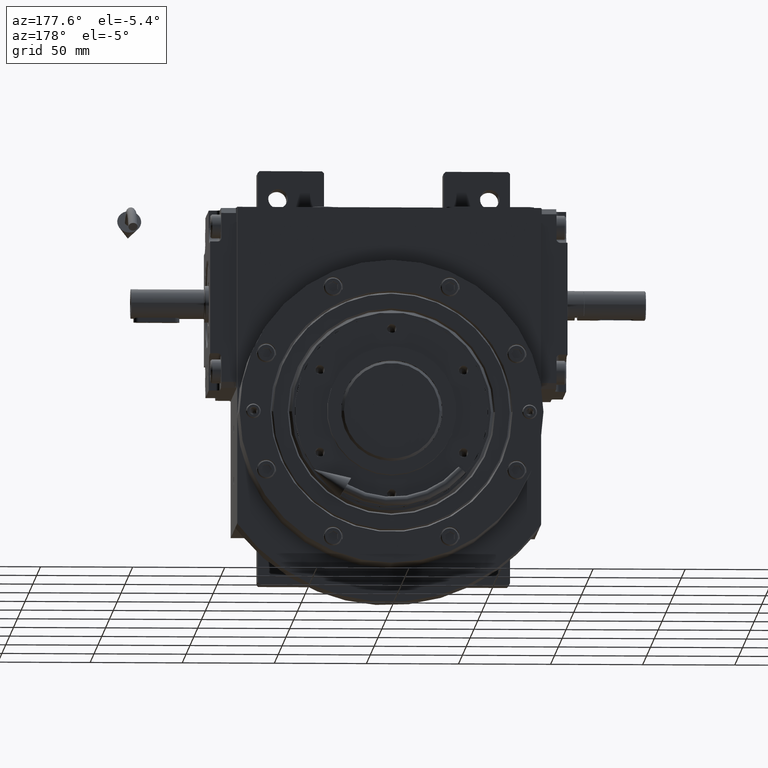
[diagram: clean part render]
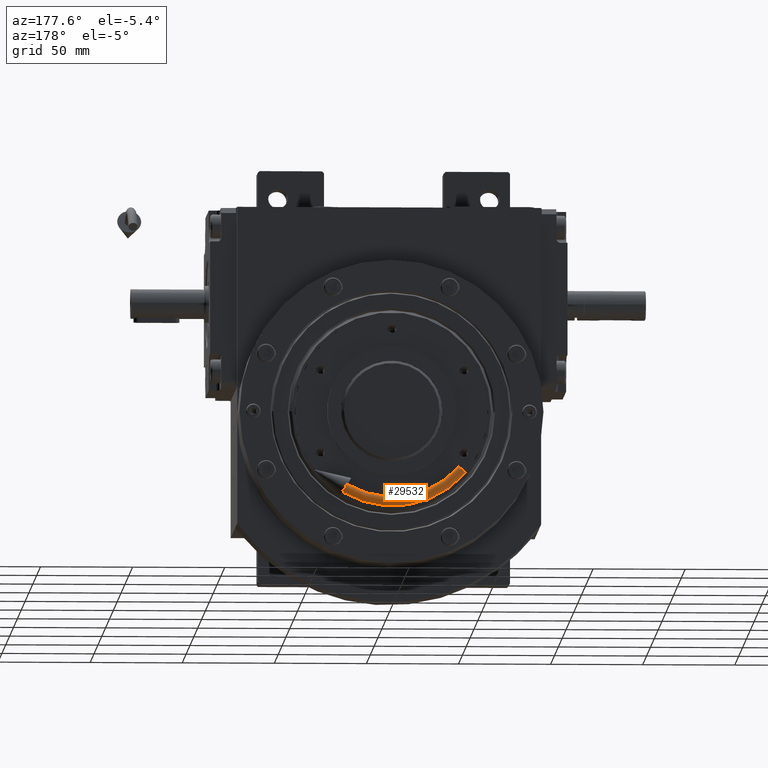
[diagram: same view with one face highlighted and labeled with its STEP entity id]
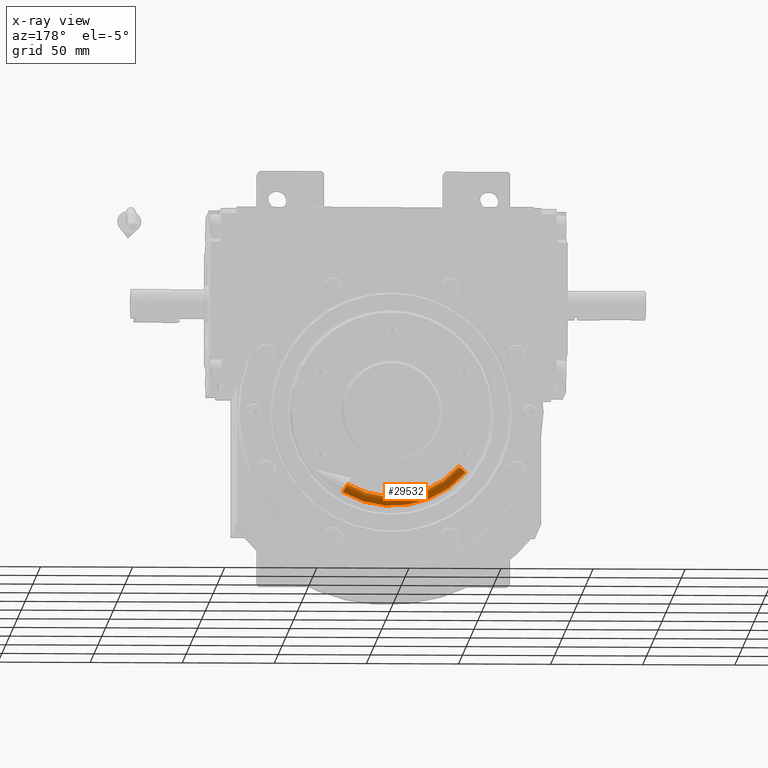
[diagram: x-ray of the same camera — body ghosted, the highlighted face saturated]
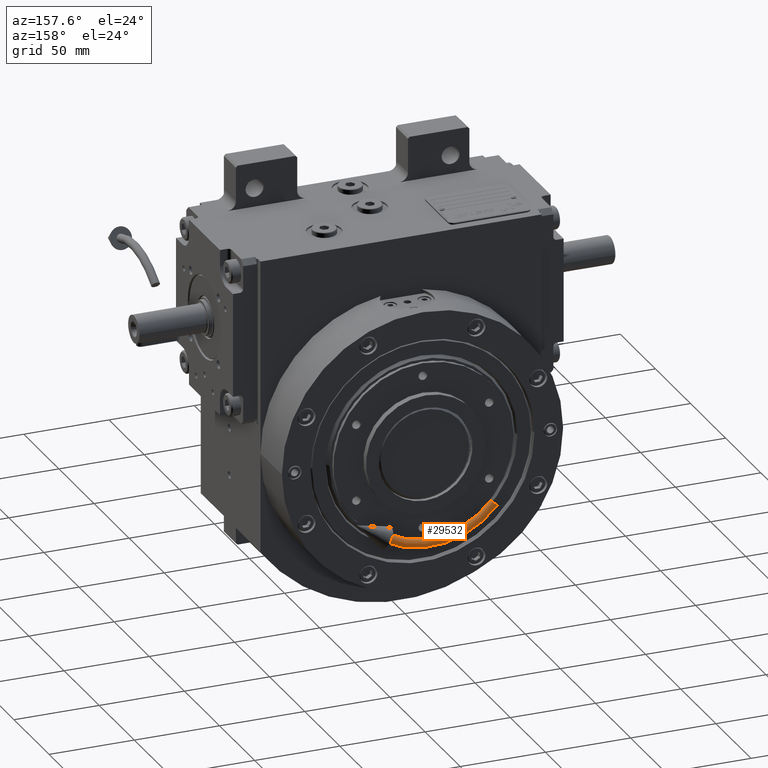
[diagram: same view with one face highlighted and labeled with its STEP entity id]
A machine part, auxiliary view. The second image highlights one B-rep face of the part: STEP entity #29532.
The next image is the same camera in x-ray: the body ghosted, the highlighted face saturated — about 0% of this face is hidden behind the body in this view.
A second angle (auxiliary view) of the same face is appended — the face is thin or edge-on in the first view.
In plain terms, the highlighted toroidal blend (fillet) surface has major radius 50 mm and minor (blend) radius 2.5 mm.
Its self-contained STEP definition (entity closure, byte-faithful):
#379 = CIRCLE ( 'NONE', #15894, 47.50000000001686828 ) ;
#936 = DIRECTION ( 'NONE',  ( -2.041375527991182042E-16, -1.000000000000000000, 1.232595164407830946E-32 ) ) ;
#4685 = CARTESIAN_POINT ( 'NONE',  ( -52.49999999998293276, -3.160566285864233684E-15, -1.373900992973723831E-14 ) ) ;
#5008 = DIRECTION ( 'NONE',  ( 1.000000000000000000, -2.041375527991182042E-16, 0.000000000000000000 ) ) ;
#5737 = VERTEX_POINT ( 'NONE', #30788 ) ;
#5757 = CARTESIAN_POINT ( 'NONE',  ( 0.000000000000000000, -1.387778780781445676E-14, 0.000000000000000000 ) ) ;
#6055 = FACE_OUTER_BOUND ( 'NONE', #31607, .T. ) ;
#7735 = TOROIDAL_SURFACE ( 'NONE', #51103, 50.00000000000000000, 2.499999999983133048 ) ;
#8466 = ORIENTED_EDGE ( 'NONE', *, *, #50323, .T. ) ;
#11010 = DIRECTION ( 'NONE',  ( 0.9848077530122086864, -2.010362446775138044E-16, 0.1736481776669274446 ) ) ;
#14217 = CIRCLE ( 'NONE', #46229, 52.49999999998313882 ) ;
#15056 = CIRCLE ( 'NONE', #59603, 2.499999999983113064 ) ;
#15894 = AXIS2_PLACEMENT_3D ( 'NONE', #29911, #53520, #5008 ) ;
#23122 = EDGE_CURVE ( 'NONE', #30179, #5737, #48256, .T. ) ;
#25791 = DIRECTION ( 'NONE',  ( -2.041375527991182042E-16, -1.000000000000000000, 1.232595164407830946E-32 ) ) ;
#26596 = CARTESIAN_POINT ( 'NONE',  ( -47.50000000001650591, 0.000000000000000000, -1.401656568589166416E-14 ) ) ;
#29532 = ADVANCED_FACE ( 'NONE', ( #6055 ), #7735, .T. ) ;
#29901 = EDGE_CURVE ( 'NONE', #30179, #48709, #379, .T. ) ;
#29911 = CARTESIAN_POINT ( 'NONE',  ( 6.249910015488181172E-32, -1.357162610802968412E-14, -3.773734306815928641E-48 ) ) ;
#30179 = VERTEX_POINT ( 'NONE', #58931 ) ;
#30788 = CARTESIAN_POINT ( 'NONE',  ( -9.116529327510729530, -1.201676182087502474E-14, 51.70240703312413189 ) ) ;
#31607 = EDGE_LOOP ( 'NONE', ( #51940, #52902, #62313, #8466 ) ) ;
#32416 = DIRECTION ( 'NONE',  ( 5.551115123125820913E-17, 0.000000000000000000, 1.000000000000000000 ) ) ;
#34890 = DIRECTION ( 'NONE',  ( 1.000000000000000000, -2.041375527991181795E-16, 0.000000000000000000 ) ) ;
#35592 = CARTESIAN_POINT ( 'NONE',  ( -8.682408883346308670, -1.387778780781445676E-14, 49.24038765061003176 ) ) ;
#35897 = AXIS2_PLACEMENT_3D ( 'NONE', #35592, #11010, #45635 ) ;
#40590 = EDGE_CURVE ( 'NONE', #5737, #53830, #14217, .T. ) ;
#42458 = DIRECTION ( 'NONE',  ( 1.000000000000000000, 0.000000000000000000, -5.551115123125813517E-17 ) ) ;
#45635 = DIRECTION ( 'NONE',  ( 0.1736481776669271393, 1.686894387621676009E-16, -0.9848077530122086864 ) ) ;
#46229 = AXIS2_PLACEMENT_3D ( 'NONE', #5757, #936, #34890 ) ;
#48256 = CIRCLE ( 'NONE', #35897, 2.499999999983113064 ) ;
#48709 = VERTEX_POINT ( 'NONE', #26596 ) ;
#50323 = EDGE_CURVE ( 'NONE', #48709, #53830, #15056, .T. ) ;
#50354 = CARTESIAN_POINT ( 'NONE',  ( 0.000000000000000000, -1.387778780781445676E-14, 0.000000000000000000 ) ) ;
#51103 = AXIS2_PLACEMENT_3D ( 'NONE', #50354, #25791, #60364 ) ;
#51940 = ORIENTED_EDGE ( 'NONE', *, *, #40590, .F. ) ;
#52902 = ORIENTED_EDGE ( 'NONE', *, *, #23122, .F. ) ;
#53520 = DIRECTION ( 'NONE',  ( -2.041375527991182042E-16, -1.000000000000000000, 1.232595164407830946E-32 ) ) ;
#53830 = VERTEX_POINT ( 'NONE', #4685 ) ;
#56672 = CARTESIAN_POINT ( 'NONE',  ( -49.99999999999962341, 0.000000000000000000, -1.387778780781445676E-14 ) ) ;
#58931 = CARTESIAN_POINT ( 'NONE',  ( -8.248288439181953535, -1.188784069127382043E-14, 46.77836826809632953 ) ) ;
#59603 = AXIS2_PLACEMENT_3D ( 'NONE', #56672, #32416, #42458 ) ;
#60364 = DIRECTION ( 'NONE',  ( 1.000000000000000000, -2.041375527991182042E-16, -5.551115123125820913E-17 ) ) ;
#62313 = ORIENTED_EDGE ( 'NONE', *, *, #29901, .T. ) ;